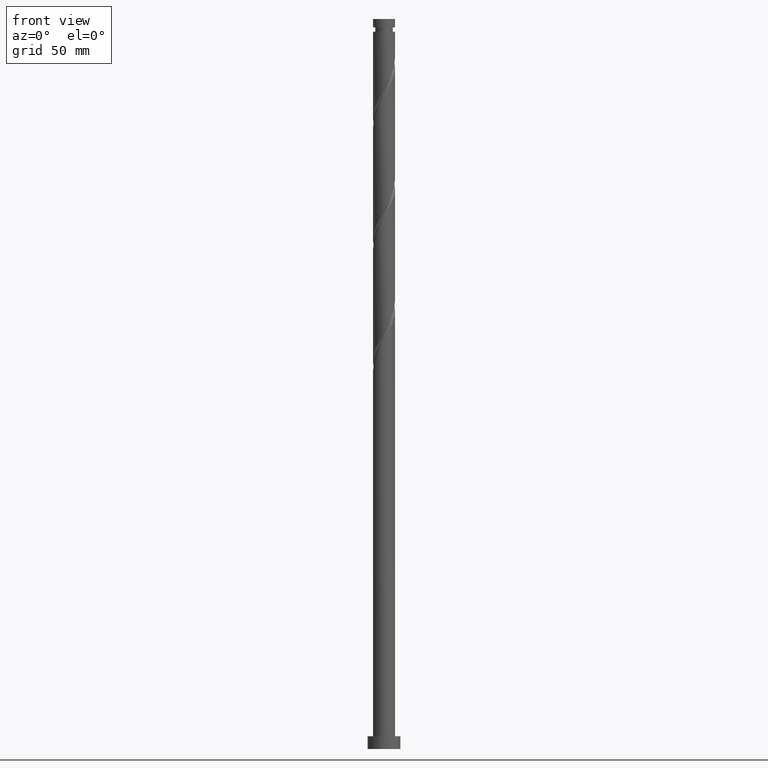
[diagram: clean part render]
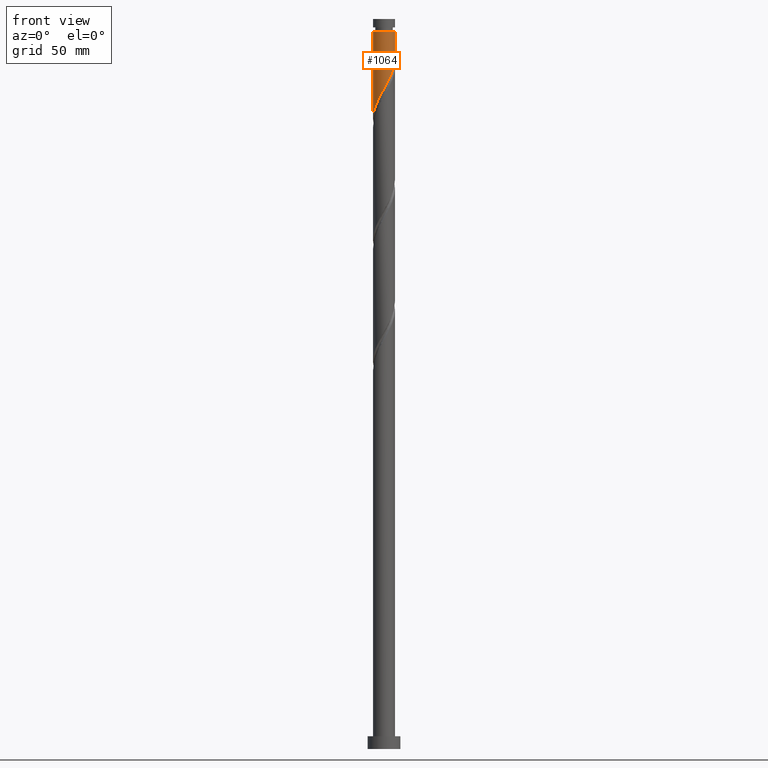
[diagram: same view with one face highlighted and labeled with its STEP entity id]
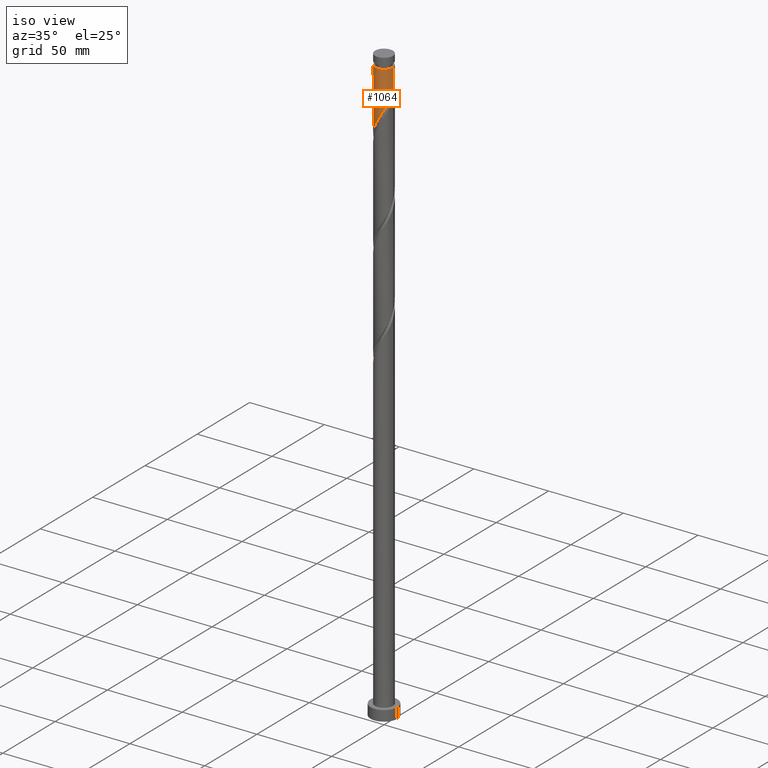
[diagram: same view with one face highlighted and labeled with its STEP entity id]
A machine part, front view. The second image highlights one B-rep face of the part: STEP entity #1064.
A second angle (iso view) of the same face is appended — the face is thin or edge-on in the first view.
In plain terms, the highlighted cylindrical surface (edge-blend (fillet) strip) has radius 6 mm, axis along (-0, -0, -1).
Its self-contained STEP definition (entity closure, byte-faithful):
#7 = CARTESIAN_POINT ( 'NONE',  ( -5.488895400337409747, -2.503940034007001270, 349.7214612269718259 ) ) ;
#44 = EDGE_CURVE ( 'NONE', #1983, #650, #859, .T. ) ;
#139 = CARTESIAN_POINT ( 'NONE',  ( 1.300851956989451885, -5.857284711024101753, 364.1659056714163398 ) ) ;
#159 = CARTESIAN_POINT ( 'NONE',  ( -5.689221836516471065, -1.905978723623149351, 348.6103501158609106 ) ) ;
#167 = LINE ( 'NONE', #1264, #894 ) ;
#187 = CYLINDRICAL_SURFACE ( 'NONE', #1644, 6.000000000000000888 ) ;
#285 = CARTESIAN_POINT ( 'NONE',  ( -5.999999999999999112, -0.3418424246785974341, 345.7858291132113209 ) ) ;
#293 = ORIENTED_EDGE ( 'NONE', *, *, #329, .F. ) ;
#304 = CARTESIAN_POINT ( 'NONE',  ( 0.000000000000000000, 0.000000000000000000, 393.0547945603053677 ) ) ;
#307 = CARTESIAN_POINT ( 'NONE',  ( 5.223250683108875414, -2.952567069755172913, 373.0547945603052540 ) ) ;
#329 = EDGE_CURVE ( 'NONE', #1983, #719, #1655, .T. ) ;
#342 = DIRECTION ( 'NONE',  ( -1.000000000000000000, 0.000000000000000000, 0.000000000000000000 ) ) ;
#437 = CARTESIAN_POINT ( 'NONE',  ( -5.168623430339798652, -3.047184247029121718, 350.8325723380830823 ) ) ;
#443 = VERTEX_POINT ( 'NONE', #867 ) ;
#446 = CARTESIAN_POINT ( 'NONE',  ( 2.490223188509141483, -5.458826657021758066, 366.3881278936386252 ) ) ;
#456 = CARTESIAN_POINT ( 'NONE',  ( -2.968830634605416741, -5.252021808101766887, 356.3881278936385684 ) ) ;
#472 = CARTESIAN_POINT ( 'NONE',  ( 0.05462725276907706706, -5.999751316784294630, 361.9436834491941681 ) ) ;
#548 = CARTESIAN_POINT ( 'NONE',  ( 5.999999999999966249, 7.347880794884099028E-16, 393.0547945603053677 ) ) ;
#614 = CARTESIAN_POINT ( 'NONE',  ( 5.999999999999999112, -0.2870639957204985659, 378.0050226115960754 ) ) ;
#622 = CARTESIAN_POINT ( 'NONE',  ( 4.077550444805407182, -4.446489714349444178, 369.7214612269719396 ) ) ;
#630 = CARTESIAN_POINT ( 'NONE',  ( -4.422131378450339767, -4.055213196827619271, 353.0547945603053108 ) ) ;
#650 = VERTEX_POINT ( 'NONE', #2005 ) ;
#651 = DIRECTION ( 'NONE',  ( -0.000000000000000000, -0.000000000000000000, -1.000000000000000000 ) ) ;
#680 = DIRECTION ( 'NONE',  ( -0.000000000000000000, -0.000000000000000000, -1.000000000000000000 ) ) ;
#719 = VERTEX_POINT ( 'NONE', #914 ) ;
#767 = CARTESIAN_POINT ( 'NONE',  ( 4.495236911988521378, -3.974021276376849432, 370.8325723380830823 ) ) ;
#774 = ORIENTED_EDGE ( 'NONE', *, *, #44, .T. ) ;
#778 = CARTESIAN_POINT ( 'NONE',  ( 0.6852265267039264751, -5.994009761157336413, 363.0547945603051971 ) ) ;
#787 = CARTESIAN_POINT ( 'NONE',  ( 0.000000000000000000, 0.000000000000000000, 400.0000000000000000 ) ) ;
#859 = CIRCLE ( 'NONE', #1994, 5.999999999999966249 ) ;
#867 = CARTESIAN_POINT ( 'NONE',  ( -5.999999999999999112, -1.324429606270948181E-14, 345.1802378038268557 ) ) ;
#894 = VECTOR ( 'NONE', #1879, 1000.000000000000000 ) ;
#914 = CARTESIAN_POINT ( 'NONE',  ( 5.999999999999999112, 2.272159143941130134E-15, 378.5135711371601701 ) ) ;
#933 = DIRECTION ( 'NONE',  ( -0.000000000000000000, -0.000000000000000000, -1.000000000000000000 ) ) ;
#947 = CARTESIAN_POINT ( 'NONE',  ( -1.811997827890125867, -5.754507127588740723, 358.6103501158608537 ) ) ;
#1063 = CARTESIAN_POINT ( 'NONE',  ( -5.961173948522126231, -0.6814727840942079728, 346.3881278936386252 ) ) ;
#1064 = ADVANCED_FACE ( 'NONE', ( #1425 ), #187, .T. ) ;
#1084 = CARTESIAN_POINT ( 'NONE',  ( -1.193984924527948133, -5.879999999999997229, 359.7214612269718828 ) ) ;
#1090 = ORIENTED_EDGE ( 'NONE', *, *, #1597, .F. ) ;
#1094 = CARTESIAN_POINT ( 'NONE',  ( 3.570759717274353928, -4.821791683751046165, 368.6103501158608537 ) ) ;
#1101 = CARTESIAN_POINT ( 'NONE',  ( 4.912923379171636462, -3.501552838404256462, 371.9436834491942250 ) ) ;
#1183 = VECTOR ( 'NONE', #680, 1000.000000000000000 ) ;
#1197 = EDGE_CURVE ( 'NONE', #650, #443, #167, .T. ) ;
#1234 = ORIENTED_EDGE ( 'NONE', *, *, #1197, .T. ) ;
#1247 = CARTESIAN_POINT ( 'NONE',  ( 5.722983335439792540, -1.802071514196485591, 375.2770167825274825 ) ) ;
#1255 = CARTESIAN_POINT ( 'NONE',  ( -5.999999999999999112, -1.324429606270948181E-14, 345.1802378038268557 ) ) ;
#1262 = CARTESIAN_POINT ( 'NONE',  ( 5.533577987046111701, -2.403581301106094692, 374.1659056714163967 ) ) ;
#1264 = CARTESIAN_POINT ( 'NONE',  ( -6.000000000000000888, 0.000000000000000000, 400.0000000000000000 ) ) ;
#1324 = CARTESIAN_POINT ( 'NONE',  ( 6.000000000000000888, 7.347880794884120722E-16, 400.0000000000000000 ) ) ;
#1389 = CARTESIAN_POINT ( 'NONE',  ( 5.912388683833474268, -1.200561727286872493, 376.3881278936386252 ) ) ;
#1407 = CARTESIAN_POINT ( 'NONE',  ( -0.5759720211657726185, -6.005492872411255512, 360.8325723380831391 ) ) ;
#1425 = FACE_OUTER_BOUND ( 'NONE', #1532, .T. ) ;
#1504 =( BOUNDED_CURVE ( )  B_SPLINE_CURVE ( 2, ( #1696, #614, #1861, #1389, #1247, #1262, #307, #1101, #767, #622, #1094, #2013, #446, #1843, #139, #778, #472, #1407, #1084, #947, #1560, #456, #1722, #1853, #630, #1991, #437, #7, #159, #1552, #1063, #285, #1255 ),
 .UNSPECIFIED., .F., .T. ) 
 B_SPLINE_CURVE_WITH_KNOTS ( ( 3, 2, 2, 2, 2, 2, 2, 2, 2, 2, 2, 2, 2, 2, 2, 2, 3 ),
 ( 0.3045286012773114059, 0.3083333333333333481, 0.3166666666666666519, 0.3250000000000000111, 0.3333333333333333148, 0.3416666666666666741, 0.3499999999999999778, 0.3583333333333333370, 0.3666666666666666408, 0.3750000000000000000, 0.3833333333333333592, 0.3916666666666666630, 0.4000000000000000222, 0.4083333333333333259, 0.4166666666666666852, 0.4249999999999999889, 0.4295286012773114059 ),
 .UNSPECIFIED. ) 
 CURVE ( )  GEOMETRIC_REPRESENTATION_ITEM ( )  RATIONAL_B_SPLINE_CURVE ( ( 0.9066196499552193755, 0.9068171577856320997, 0.9090909090909310430, 0.9041108139711793168, 0.9090909090909310430, 0.9041108139711793168, 0.9090909090909310430, 0.9041108139711793168, 0.9090909090909310430, 0.9041108139711793168, 0.9090909090909310430, 0.9041108139711793168, 0.9090909090909310430, 0.9041108139711793168, 0.9090909090909310430, 0.9041108139711793168, 0.9090909090909310430, 0.9041108139711793168, 0.9090909090909310430, 0.9041108139711793168, 0.9090909090909310430, 0.9041108139711793168, 0.9090909090909310430, 0.9041108139711793168, 0.9090909090909310430, 0.9041108139711793168, 0.9090909090909310430, 0.9041108139711793168, 0.9090909090909310430, 0.9041108139711793168, 0.9090909090909310430, 0.9063845652764782601, 0.9066196499552193755 ) ) 
 REPRESENTATION_ITEM ( '' )  );
#1532 = EDGE_LOOP ( 'NONE', ( #293, #774, #1234, #1090 ) ) ;
#1549 = DIRECTION ( 'NONE',  ( -1.000000000000000000, 0.000000000000000000, 0.000000000000000000 ) ) ;
#1552 = CARTESIAN_POINT ( 'NONE',  ( -5.889548272695531494, -1.308017413239299653, 347.4992390047497679 ) ) ;
#1560 = CARTESIAN_POINT ( 'NONE',  ( -2.390414231247773635, -5.503264467845252028, 357.4992390047495974 ) ) ;
#1597 = EDGE_CURVE ( 'NONE', #719, #443, #1504, .T. ) ;
#1644 = AXIS2_PLACEMENT_3D ( 'NONE', #787, #651, #342 ) ;
#1655 = LINE ( 'NONE', #1324, #1183 ) ;
#1696 = CARTESIAN_POINT ( 'NONE',  ( 5.999999999999999112, 2.272159143941130134E-15, 378.5135711371601701 ) ) ;
#1722 = CARTESIAN_POINT ( 'NONE',  ( -3.482370965581955247, -4.886009870852880077, 355.2770167825274257 ) ) ;
#1843 = CARTESIAN_POINT ( 'NONE',  ( 1.916477387274979849, -5.720559660890867093, 365.2770167825274257 ) ) ;
#1853 = CARTESIAN_POINT ( 'NONE',  ( -3.995911296558494197, -4.519997933603993268, 354.1659056714164535 ) ) ;
#1861 = CARTESIAN_POINT ( 'NONE',  ( 5.972594154091097174, -0.5728167861688799878, 377.4992390047497679 ) ) ;
#1879 = DIRECTION ( 'NONE',  ( -0.000000000000000000, -0.000000000000000000, -1.000000000000000000 ) ) ;
#1983 = VERTEX_POINT ( 'NONE', #548 ) ;
#1991 = CARTESIAN_POINT ( 'NONE',  ( -4.848351460342184893, -3.590428460051244386, 351.9436834491941681 ) ) ;
#1994 = AXIS2_PLACEMENT_3D ( 'NONE', #304, #933, #1549 ) ;
#2005 = CARTESIAN_POINT ( 'NONE',  ( -5.999999999999966249, 0.000000000000000000, 393.0547945603053677 ) ) ;
#2013 = CARTESIAN_POINT ( 'NONE',  ( 3.063968989743301119, -5.197093653152651704, 367.4992390047496542 ) ) ;